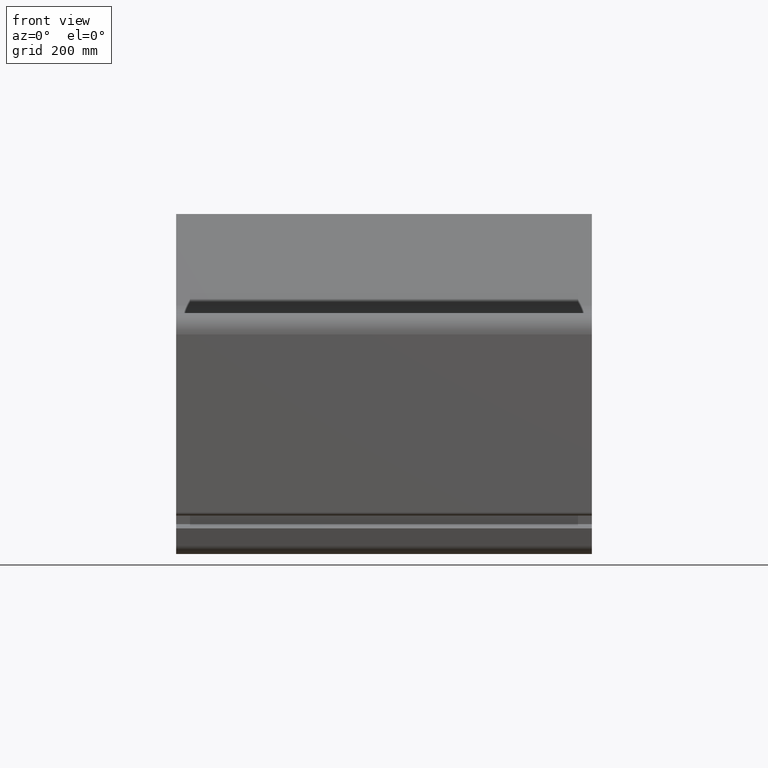
[diagram: clean part render]
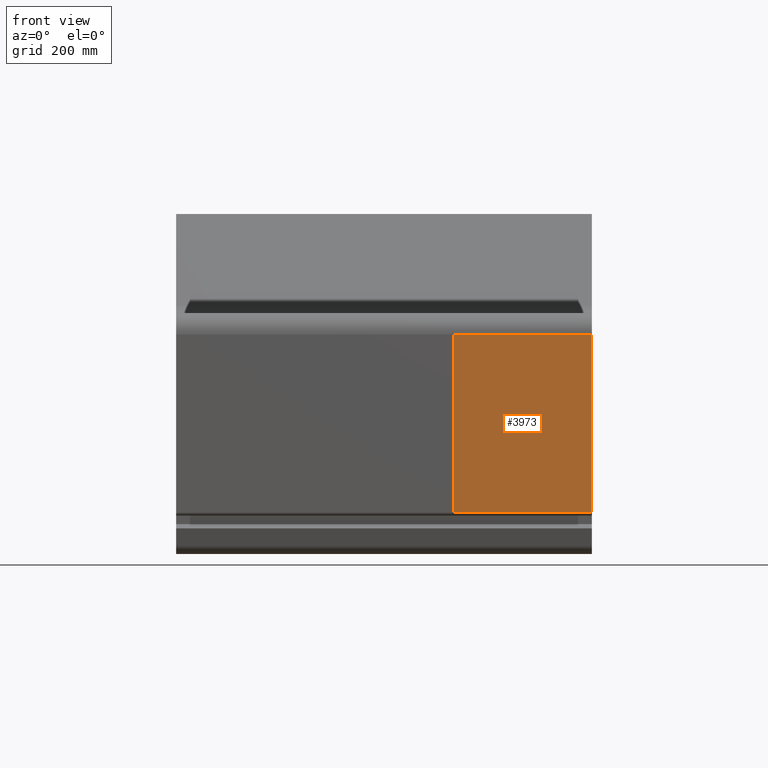
[diagram: same view with one face highlighted and labeled with its STEP entity id]
A machine part, front view. The second image highlights one B-rep face of the part: STEP entity #3973.
In plain terms, the highlighted planar face has unit normal (0, -1, 0).
Its self-contained STEP definition (entity closure, byte-faithful):
#3915=CARTESIAN_POINT('',(975.00000000000045,-755.0,30.499999999999936));
#3916=VERTEX_POINT('',#3915);
#3924=CARTESIAN_POINT('',(650.00000000000023,-755.0,30.499999999999936));
#3925=VERTEX_POINT('',#3924);
#3926=CARTESIAN_POINT('',(650.00000000000023,-755.0,30.499999999999936));
#3927=DIRECTION('',(1.0,0.0,0.0));
#3928=VECTOR('',#3927,325.00000000000011);
#3929=LINE('',#3926,#3928);
#3930=EDGE_CURVE('',#3925,#3916,#3929,.T.);
#3943=CARTESIAN_POINT('',(650.00000000000023,-755.0,30.499999999999936));
#3944=DIRECTION('',(0.0,-1.0,0.0));
#3945=DIRECTION('',(0.0,0.0,-1.0));
#3946=AXIS2_PLACEMENT_3D('',#3943,#3944,#3945);
#3947=PLANE('',#3946);
#3948=CARTESIAN_POINT('',(975.00000000000045,-755.0,447.5));
#3949=VERTEX_POINT('',#3948);
#3950=CARTESIAN_POINT('',(975.00000000000045,-755.0,30.499999999999936));
#3951=DIRECTION('',(0.0,0.0,1.0));
#3952=VECTOR('',#3951,417.0);
#3953=LINE('',#3950,#3952);
#3954=EDGE_CURVE('',#3916,#3949,#3953,.T.);
#3955=ORIENTED_EDGE('',*,*,#3954,.T.);
#3956=CARTESIAN_POINT('',(650.00000000000023,-755.0,447.5));
#3957=VERTEX_POINT('',#3956);
#3958=CARTESIAN_POINT('',(650.00000000000023,-755.0,447.5));
#3959=DIRECTION('',(1.0,0.0,0.0));
#3960=VECTOR('',#3959,325.00000000000011);
#3961=LINE('',#3958,#3960);
#3962=EDGE_CURVE('',#3957,#3949,#3961,.T.);
#3963=ORIENTED_EDGE('',*,*,#3962,.F.);
#3964=CARTESIAN_POINT('',(650.00000000000023,-755.0,30.499999999999936));
#3965=DIRECTION('',(0.0,0.0,1.0));
#3966=VECTOR('',#3965,417.0);
#3967=LINE('',#3964,#3966);
#3968=EDGE_CURVE('',#3925,#3957,#3967,.T.);
#3969=ORIENTED_EDGE('',*,*,#3968,.F.);
#3970=ORIENTED_EDGE('',*,*,#3930,.T.);
#3971=EDGE_LOOP('',(#3955,#3963,#3969,#3970));
#3972=FACE_OUTER_BOUND('',#3971,.T.);
#3973=ADVANCED_FACE('',(#3972),#3947,.T.);